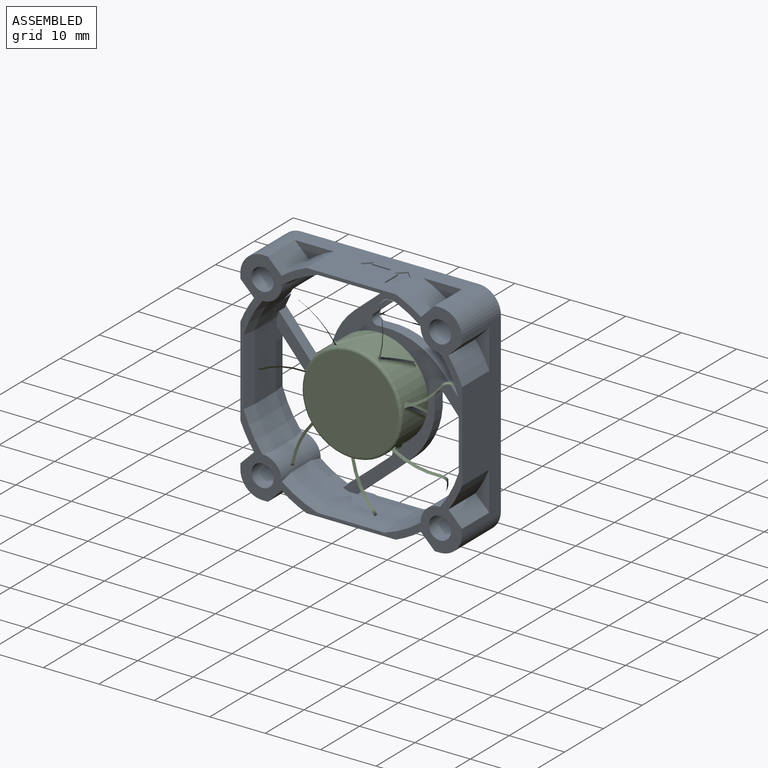
[diagram: assembled view]
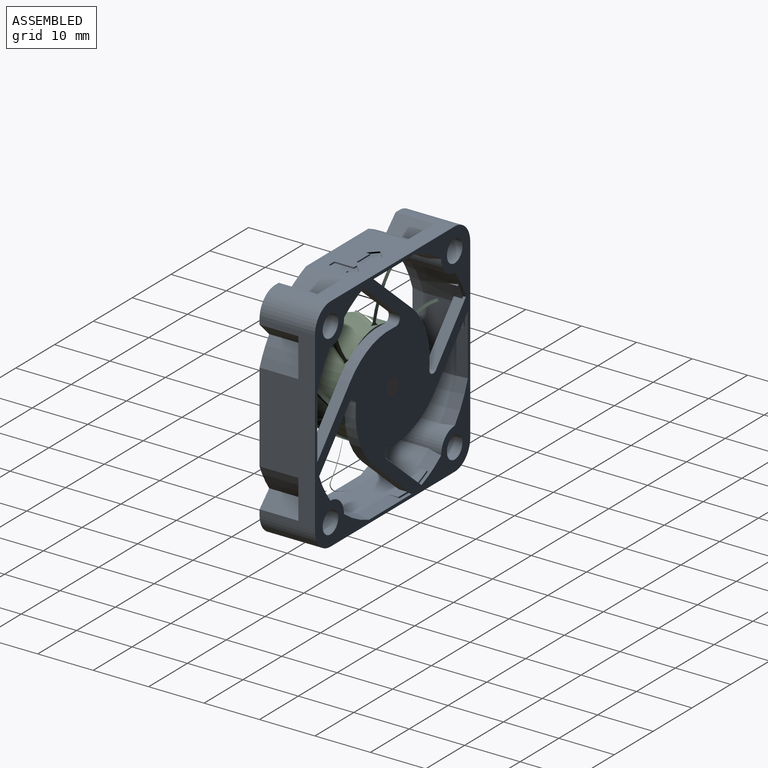
[diagram: assembled view, second angle]
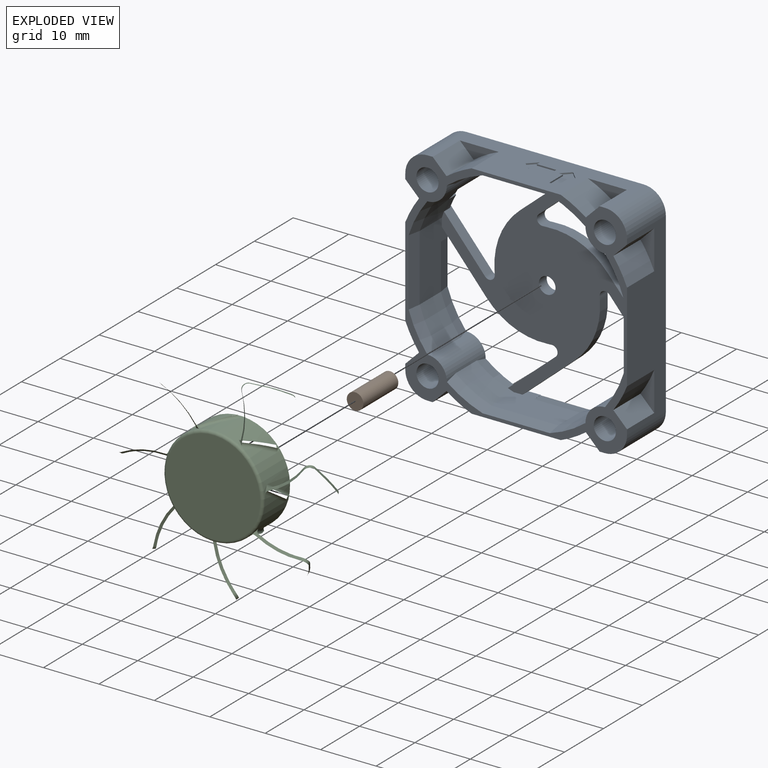
[diagram: exploded view]
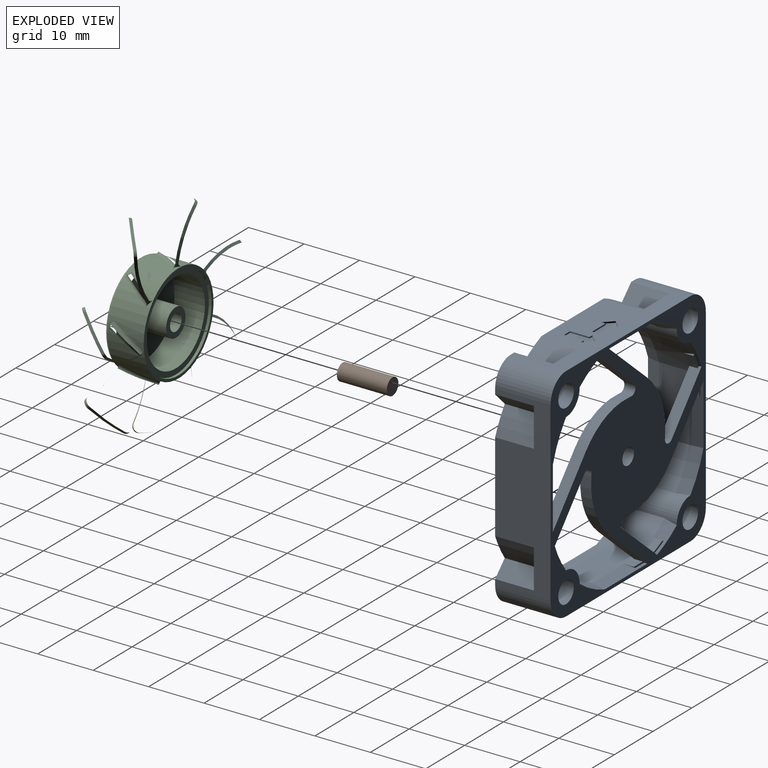
[diagram: exploded view, second angle]
ASSEMBLY  parts=3 mates=2
PART A: 132 faces, bbox 40x10x40 mm
  f0: plane 9.86x8.47mm, normal (-0.65,0,0.76), area 25mm2, adj f4,f28,f37,f87,f99,f115
  f1: plane 9.86x8.47mm, normal (0.76,0,0.65), area 25mm2, adj f5,f16,f37,f87,f95,f111
  f2: plane 9.86x8.47mm, normal (0.65,0,-0.76), area 25mm2, adj f6,f20,f37,f87,f91,f107
  f3: plane 9.86x8.47mm, normal (-0.76,0,-0.65), area 25mm2, adj f7,f24,f37,f86,f87,f103
  f4: plane 10.99x2.27mm, normal (0,0.17,-0.98), area 20.6mm2, adj f0,f28,f37,f79,f114,f115
  f5: plane 10.99x2.27mm, normal (-0.98,0.17,0), area 20.6mm2, adj f1,f16,f37,f81,f110,f111
  f6: plane 10.99x2.27mm, normal (0,0.17,0.98), area 20.6mm2, adj f2,f20,f37,f74,f106,f107
  f7: plane 10.99x2.27mm, normal (0.98,0.17,0), area 20.6mm2, adj f3,f24,f37,f76,f102,f103
  f8: plane 40x40mm, normal (0,-1,0), area 219.4mm2, adj f9,f10,f11,f12,f13,f14,f15,f18
  f9: plane 32x10mm, normal (-1,0,0), area 222mm2, adj f8,f14,f15,f37,f41,f42,f43,f59
  f10: plane 32x10mm, normal (0,0,-1), area 222mm2, adj f8,f15,f36,f37,f38,f39,f40,f47
  f11: plane 32x10mm, normal (1,0,0), area 222mm2, adj f8,f12,f36,f37,f44,f45,f46,f53
  f12: cylinder r=4mm len=10mm, axis (0,1,0), area 62.8mm2, adj f8,f11,f13,f37
  f13: plane 32x10mm, normal (0,0,1), area 207mm2, adj f8,f12,f14,f37,f50,f51,f52,f56
  f14: cylinder r=4mm len=10mm, axis (0,1,0), area 62.8mm2, adj f8,f9,f13,f37
  f15: cylinder r=4mm len=10mm, axis (0,1,0), area 62.8mm2, adj f8,f9,f10,f37
  f16: plane 12x7.23mm, normal (-1,0,0), area 70mm2, adj f1,f5,f17,f35,f64,f87,f110,f111
  f17: cylinder r=19.92mm len=7.23mm, axis (0,1,0), area 45.8mm2, adj f16,f18,f62,f80,f87,f92,f108,f109
  f18: cylinder r=3.5mm len=10mm, axis (0,1,0), area 47.2mm2, adj f8,f17,f19,f37,f62,f71,f74,f80
  f19: cylinder r=19.92mm len=6.54mm, axis (0,1,0), area 40.8mm2, adj f18,f20,f71,f74
  f20: plane 12x7.23mm, normal (0,0,1), area 70mm2, adj f2,f6,f19,f21,f73,f87,f106,f107
  f21: cylinder r=19.92mm len=7.23mm, axis (0,1,0), area 45.8mm2, adj f20,f22,f72,f75,f87,f88,f104,f105
  f22: cylinder r=3.5mm len=10mm, axis (0,1,0), area 47.2mm2, adj f8,f21,f23,f37,f68,f72,f75,f76
  f23: cylinder r=19.92mm len=6.54mm, axis (0,1,0), area 40.8mm2, adj f22,f24,f68,f76
  f24: plane 12x7.23mm, normal (1,0,0), area 70mm2, adj f3,f7,f23,f25,f70,f87,f102,f103
  f25: cylinder r=19.92mm len=7.23mm, axis (0,1,0), area 45.8mm2, adj f24,f26,f69,f77,f82,f87,f100,f101
  f26: cylinder r=3.5mm len=10mm, axis (0,1,0), area 47.2mm2, adj f8,f25,f27,f37,f66,f69,f77,f79
  f27: cylinder r=19.92mm len=6.54mm, axis (0,1,0), area 40.8mm2, adj f26,f28,f66,f79
  f28: plane 12x7.23mm, normal (0,0,-1), area 70mm2, adj f0,f4,f27,f29,f67,f87,f114,f115
  f29: cylinder r=19.92mm len=7.23mm, axis (0,1,0), area 45.8mm2, adj f28,f30,f65,f78,f87,f96,f112,f113
  f30: cylinder r=3.5mm len=10mm, axis (0,1,0), area 47.2mm2, adj f8,f29,f35,f37,f63,f65,f78,f81
  f31: cylinder r=2mm len=10mm, axis (0,1,0), area 125.7mm2, adj f8,f37
  f32: cylinder r=2mm len=10mm, axis (0,1,0), area 125.7mm2, adj f8,f37
  f33: cylinder r=2mm len=10mm, axis (0,1,0), area 125.7mm2, adj f8,f37
  f34: cylinder r=2mm len=10mm, axis (0,1,0), area 125.7mm2, adj f8,f37
  f35: cylinder r=19.92mm len=6.54mm, axis (0,1,0), area 40.8mm2, adj f16,f30,f63,f81
  f36: cylinder r=4mm len=10mm, axis (0,1,0), area 62.8mm2, adj f8,f10,f11,f37
  f37: plane 40x40mm, normal (0,1,0), area 730mm2, adj f0,f1,f2,f3,f4,f5,f6,f7
  f38: plane 7x2.48mm, normal (0.71,0,-0.71), area 24.6mm2, adj f8,f10,f39,f40
  f39: cylinder r=21.56mm len=7mm, axis (0,-1,0), area 36.2mm2, adj f8,f10,f38,f40
  f40: plane 7x2.48mm, normal (0,-1,0), area 8.2mm2, adj f10,f38,f39
  f41: plane 7x2.48mm, normal (-0.71,0,0.71), area 24.6mm2, adj f8,f9,f42,f43
  f42: cylinder r=21.56mm len=7mm, axis (0,-1,0), area 36.2mm2, adj f8,f9,f41,f43
  f43: plane 7x2.48mm, normal (0,-1,0), area 8.2mm2, adj f9,f41,f42
  f44: plane 7x2.48mm, normal (0.71,0,0.71), area 24.6mm2, adj f8,f11,f45,f46
  f45: cylinder r=21.56mm len=7mm, axis (0,-1,0), area 36.2mm2, adj f8,f11,f44,f46
  f46: plane 7x2.48mm, normal (0,-1,0), area 8.2mm2, adj f11,f44,f45
  f47: plane 7x2.48mm, normal (-0.71,0,-0.71), area 24.6mm2, adj f8,f10,f48,f49
  f48: cylinder r=21.56mm len=7mm, axis (0,-1,0), area 36.2mm2, adj f8,f10,f47,f49
  f49: plane 7x2.48mm, normal (0,-1,0), area 8.2mm2, adj f10,f47,f48
  f50: plane 7x2.48mm, normal (-0.71,0,0.71), area 24.6mm2, adj f8,f13,f51,f52
  f51: cylinder r=21.56mm len=7mm, axis (0,-1,0), area 36.2mm2, adj f8,f13,f50,f52
  f52: plane 7x2.48mm, normal (0,-1,0), area 8.2mm2, adj f13,f50,f51
  f53: plane 7x2.48mm, normal (0.71,0,-0.71), area 24.6mm2, adj f8,f11,f54,f55
  f54: cylinder r=21.56mm len=7mm, axis (0,-1,0), area 36.2mm2, adj f8,f11,f53,f55
  f55: plane 7x2.48mm, normal (0,-1,0), area 8.2mm2, adj f11,f53,f54
  f56: plane 7x2.48mm, normal (0.71,0,0.71), area 24.6mm2, adj f8,f13,f57,f58
  f57: cylinder r=21.56mm len=7mm, axis (0,-1,0), area 36.2mm2, adj f8,f13,f56,f58
  f58: plane 7x2.48mm, normal (0,-1,0), area 8.2mm2, adj f13,f56,f57
  f59: plane 7x2.48mm, normal (-0.71,0,-0.71), area 24.6mm2, adj f8,f9,f60,f61
  f60: cylinder r=21.56mm len=7mm, axis (0,-1,0), area 36.2mm2, adj f8,f9,f59,f61
  f61: plane 7x2.48mm, normal (0,-1,0), area 8.2mm2, adj f9,f59,f60
  f62: cone r=20.32mm half-angle=10deg, axis (0,-1,0), area 17mm2, adj f8,f17,f18,f64
  f63: cone r=20.32mm half-angle=10deg, axis (0,-1,0), area 17mm2, adj f8,f30,f35,f64
  f64: plane 12.12x2.27mm, normal (-0.98,-0.17,0), area 27.8mm2, adj f8,f16,f62,f63
  f65: cone r=20.32mm half-angle=10deg, axis (0,-1,0), area 17mm2, adj f8,f29,f30,f67
  f66: cone r=20.32mm half-angle=10deg, axis (0,-1,0), area 17mm2, adj f8,f26,f27,f67
  f67: plane 12.12x2.27mm, normal (0,-0.17,-0.98), area 27.8mm2, adj f8,f28,f65,f66
  f68: cone r=20.32mm half-angle=10deg, axis (0,-1,0), area 17mm2, adj f8,f22,f23,f70
  f69: cone r=20.32mm half-angle=10deg, axis (0,-1,0), area 17mm2, adj f8,f25,f26,f70
  f70: plane 12.12x2.27mm, normal (0.98,-0.17,0), area 27.8mm2, adj f8,f24,f68,f69
  f71: cone r=20.32mm half-angle=10deg, axis (0,-1,0), area 17mm2, adj f8,f18,f19,f73
  f72: cone r=20.32mm half-angle=10deg, axis (0,-1,0), area 17mm2, adj f8,f21,f22,f73
  f73: plane 12.12x2.27mm, normal (0,-0.17,0.98), area 27.8mm2, adj f8,f20,f71,f72
  f74: cone r=19.92mm half-angle=10deg, axis (0,1,0), area 17mm2, adj f6,f18,f19,f37
  f75: cone r=19.92mm half-angle=10deg, axis (0,1,0), area 9.2mm2, adj f21,f22,f37,f88,f104,f105
  f76: cone r=19.92mm half-angle=10deg, axis (0,1,0), area 17mm2, adj f7,f22,f23,f37
  f77: cone r=19.92mm half-angle=10deg, axis (0,1,0), area 9.2mm2, adj f25,f26,f37,f82,f100,f101
  f78: cone r=19.92mm half-angle=10deg, axis (0,1,0), area 9.2mm2, adj f29,f30,f37,f96,f112,f113
  f79: cone r=19.92mm half-angle=10deg, axis (0,1,0), area 17mm2, adj f4,f26,f27,f37
  f80: cone r=19.92mm half-angle=10deg, axis (0,1,0), area 9.2mm2, adj f17,f18,f37,f92,f108,f109
  f81: cone r=19.92mm half-angle=10deg, axis (0,1,0), area 17mm2, adj f5,f30,f35,f37
  f82: plane 8.95x7.69mm, normal (0.76,0,0.65), area 22.9mm2, adj f25,f37,f77,f83,f87,f100
  f83: cylinder r=1mm len=2mm, axis (0,1,0), area 5mm2, adj f37,f82,f84,f87
  f84: cylinder r=9.5mm len=2mm, axis (0,1,0), area 1.6mm2, adj f37,f83,f87,f99
  f85: cylinder r=1.5mm len=3mm, axis (0,1,0), area 18.8mm2, adj f37,f87
  f86: cylinder r=13.22mm len=10.93mm, axis (0,1,0), area 24.6mm2, adj f3,f37,f87,f90
  f87: plane 38x38mm, normal (0,-1,0), area 441.1mm2, adj f0,f1,f2,f3,f16,f17,f20,f21
  f88: plane 8.95x7.69mm, normal (-0.65,0,0.76), area 22.9mm2, adj f21,f37,f75,f87,f89,f104
  f89: cylinder r=1mm len=2mm, axis (0,1,0), area 5mm2, adj f37,f87,f88,f90
  f90: cylinder r=9.5mm len=2mm, axis (0,1,0), area 1.6mm2, adj f37,f86,f87,f89
  f91: cylinder r=13.22mm len=10.93mm, axis (0,1,0), area 24.6mm2, adj f2,f37,f87,f94
  f92: plane 8.95x7.69mm, normal (-0.76,0,-0.65), area 22.9mm2, adj f17,f37,f80,f87,f93,f108
  f93: cylinder r=1mm len=2mm, axis (0,1,0), area 5mm2, adj f37,f87,f92,f94
  f94: cylinder r=9.5mm len=2mm, axis (0,1,0), area 1.6mm2, adj f37,f87,f91,f93
  f95: cylinder r=13.22mm len=10.93mm, axis (0,1,0), area 24.6mm2, adj f1,f37,f87,f98
  f96: plane 8.95x7.69mm, normal (0.65,0,-0.76), area 22.9mm2, adj f29,f37,f78,f87,f97,f112
  f97: cylinder r=1mm len=2mm, axis (0,1,0), area 5mm2, adj f37,f87,f96,f98
  f98: cylinder r=9.5mm len=2mm, axis (0,1,0), area 1.6mm2, adj f37,f87,f95,f97
  f99: cylinder r=13.22mm len=10.93mm, axis (0,1,0), area 24.6mm2, adj f0,f37,f84,f87
  f100: plane 2.69x1.35mm, normal (0,1,0), area 0.8mm2, adj f25,f77,f82,f101
  f101: plane 1.77x0.25mm, normal (0.76,0,0.65), area 0.3mm2, adj f25,f77,f100
  f102: plane 1.77x0.36mm, normal (-0.76,0,-0.65), area 0.4mm2, adj f7,f24,f103
  f103: plane 2.66x0.31mm, normal (0,1,0), area 0.7mm2, adj f3,f7,f24,f102
  f104: plane 2.69x1.35mm, normal (0,1,0), area 0.8mm2, adj f21,f75,f88,f105
  f105: plane 1.77x0.25mm, normal (-0.65,0,0.76), area 0.3mm2, adj f21,f75,f104
  f106: plane 1.77x0.36mm, normal (0.65,0,-0.76), area 0.4mm2, adj f6,f20,f107
  f107: plane 2.66x0.31mm, normal (0,1,0), area 0.7mm2, adj f2,f6,f20,f106
  f108: plane 2.69x1.35mm, normal (0,1,0), area 0.8mm2, adj f17,f80,f92,f109
  f109: plane 1.77x0.25mm, normal (-0.76,0,-0.65), area 0.3mm2, adj f17,f80,f108
  f110: plane 1.77x0.36mm, normal (0.76,0,0.65), area 0.4mm2, adj f5,f16,f111
  f111: plane 2.66x0.31mm, normal (0,1,0), area 0.7mm2, adj f1,f5,f16,f110
  f112: plane 2.69x1.35mm, normal (0,1,0), area 0.8mm2, adj f29,f78,f96,f113
  f113: plane 1.77x0.25mm, normal (0.65,0,-0.76), area 0.3mm2, adj f29,f78,f112
  f114: plane 1.77x0.36mm, normal (-0.65,0,0.76), area 0.4mm2, adj f4,f28,f115
  f115: plane 2.66x0.31mm, normal (0,1,0), area 0.7mm2, adj f0,f4,f28,f114
  f116: plane 3.5x0.25mm, normal (0,1,0), area 0.9mm2, adj f13,f117,f122,f123
  f117: plane 1.5x0.25mm, normal (-1,0,0), area 0.4mm2, adj f13,f116,f118,f123
  f118: plane 3.5x0.25mm, normal (0,-1,0), area 0.9mm2, adj f13,f117,f119,f123
  f119: plane 0.75x0.25mm, normal (-1,0,0), area 0.2mm2, adj f13,f118,f120,f123
  f120: plane 1.5x1.5mm, normal (0.71,-0.71,0), area 0.5mm2, adj f13,f119,f121,f123
  f121: plane 1.5x1.5mm, normal (0.71,0.71,0), area 0.5mm2, adj f13,f120,f122,f123
  f122: plane 0.75x0.25mm, normal (-1,0,0), area 0.2mm2, adj f13,f116,f121,f123
  f123: plane 5x3mm, normal (0,0,1), area 7.5mm2, adj f116,f117,f118,f119,f120,f121,f122
  f124: plane 1.5x1.5mm, normal (-0.71,-0.71,0), area 0.5mm2, adj f13,f125,f130,f131
  f125: plane 1.5x1.5mm, normal (0.71,-0.71,0), area 0.5mm2, adj f13,f124,f126,f131
  f126: plane 0.75x0.25mm, normal (0,1,0), area 0.2mm2, adj f13,f125,f127,f131
  f127: plane 3.5x0.25mm, normal (1,0,0), area 0.9mm2, adj f13,f126,f128,f131
  f128: plane 1.5x0.25mm, normal (0,1,0), area 0.4mm2, adj f13,f127,f129,f131
  f129: plane 3.5x0.25mm, normal (-1,0,0), area 0.9mm2, adj f13,f128,f130,f131
  f130: plane 0.75x0.25mm, normal (0,1,0), area 0.2mm2, adj f13,f124,f129,f131
  f131: plane 5x3mm, normal (0,0,1), area 7.5mm2, adj f124,f125,f126,f127,f128,f129,f130
PART B: 3 faces, bbox 3x9x3 mm
  f0: cylinder r=1.5mm len=9mm, axis (0,1,0), area 84.8mm2, adj f1,f2
  f1: plane 3x3mm, normal (0,-1,0), area 7.1mm2, adj f0
  f2: plane 3x3mm, normal (0,1,0), area 7.1mm2, adj f0
PART C: 75 faces, bbox 37.1x7.5x36.9 mm
  f0: cylinder r=9mm len=18mm, axis (0,-1,0), area 300.8mm2, adj f11,f16,f17,f18,f19,f23,f24,f25
  f1: bspline ~3.98x1.98mm, area 0mm2, adj f2,f4
  f2: bspline ~3.01x2.73mm, area 0mm2, adj f1,f10
  f3: cylinder r=7.5mm len=15mm, axis (0,-1,0), area 259.2mm2, adj f4,f5
  f4: plane 17x17mm, normal (0,1,0), area 50.2mm2, adj f1,f3,f10,f63,f65,f67,f69,f71
  f5: plane 15x15mm, normal (0,1,0), area 157.1mm2, adj f3,f7
  f6: cylinder r=1.5mm len=5.5mm, axis (0,-1,0), area 51.8mm2, adj f8,f9
  f7: cylinder r=2.5mm len=5.5mm, axis (0,-1,0), area 86.4mm2, adj f5,f8
  f8: plane 5x5mm, normal (0,1,0), area 12.6mm2, adj f6,f7
  f9: plane 3x3mm, normal (0,1,0), area 7.1mm2, adj f6
  f10: cylinder r=8.5mm len=17mm, axis (0,-1,0), area 26.4mm2, adj f2,f4,f11,f62,f64,f66,f68,f70
  f11: plane 18x18mm, normal (0,1,0), area 27.5mm2, adj f0,f10
  f12: plane 17x17mm, normal (0,-1,0), area 227mm2, adj f74
  f13: bspline ~1.62x1.52mm, area 1mm2, adj f14,f17
  f14: bspline ~4.86x4.5mm, area 3.3mm2, adj f13,f15
  f15: bspline ~1.02x0.87mm, area 0.6mm2, adj f14,f16
  f16: bspline ~9.82x5.71mm, area 5mm2, adj f0,f15,f18,f19
  f17: bspline ~10.82x2.61mm, area 4.6mm2, adj f0,f13,f18,f19
  f18: bspline ~6.93x3.8mm, area 5.6mm2, adj f0,f16,f17
  f19: bspline ~6.89x3.67mm, area 4.4mm2, adj f0,f16,f17
  f20: bspline ~5.33x4.5mm, area 3.3mm2, adj f21,f22
  f21: bspline ~0.97x0.95mm, area 0.6mm2, adj f20,f23
  f22: bspline ~1.61x1.57mm, area 1mm2, adj f20,f24
  f23: bspline ~10.54x3.74mm, area 5mm2, adj f0,f21,f25,f26
  f24: bspline ~10.74x2.8mm, area 4.6mm2, adj f0,f22,f25,f26
  f25: bspline ~6.89x3.67mm, area 4.4mm2, adj f0,f23,f24
  f26: bspline ~6.93x4.32mm, area 5.6mm2, adj f0,f23,f24
  f27: bspline ~7.28x5.87mm, area 3.3mm2, adj f28,f29
  f28: bspline ~1.13x0.9mm, area 0.6mm2, adj f27,f30
  f29: bspline ~1.56x1.54mm, area 1mm2, adj f27,f31
  f30: bspline ~10.85x2.24mm, area 5mm2, adj f0,f28,f32,f33
  f31: bspline ~10.13x4.66mm, area 4.6mm2, adj f0,f29,f32,f33
  f32: bspline ~6.89x4.12mm, area 4.4mm2, adj f0,f30,f31
  f33: bspline ~6.93x4.61mm, area 5.6mm2, adj f0,f30,f31
  f34: bspline ~7.16x5.87mm, area 3.3mm2, adj f35,f36
  f35: bspline ~1.23x0.87mm, area 0.6mm2, adj f34,f37
  f36: bspline ~1.67x1.43mm, area 1mm2, adj f34,f38
  f37: bspline ~10.62x3.28mm, area 5mm2, adj f0,f35,f39,f40
  f38: bspline ~9.28x6.65mm, area 4.6mm2, adj f0,f36,f39,f40
  f39: bspline ~6.89x4.48mm, area 4.4mm2, adj f0,f37,f38
  f40: bspline ~6.93x4.68mm, area 5.6mm2, adj f0,f37,f38
  f41: bspline ~4.5x4.14mm, area 3.3mm2, adj f42,f43
  f42: bspline ~1.17x0.87mm, area 0.6mm2, adj f41,f44
  f43: bspline ~1.58x1.48mm, area 1mm2, adj f41,f45
  f44: bspline ~8.71x7.52mm, area 5mm2, adj f0,f42,f46,f47
  f45: bspline ~10.35x4.29mm, area 4.6mm2, adj f0,f43,f46,f47
  f46: bspline ~6.89x4.21mm, area 4.4mm2, adj f0,f44,f45
  f47: bspline ~6.93x3.94mm, area 5.6mm2, adj f0,f44,f45
  f48: bspline ~4.52x4.5mm, area 3.3mm2, adj f49,f50
  f49: bspline ~1.25x0.87mm, area 0.6mm2, adj f48,f51
  f50: bspline ~1.62x1.59mm, area 1mm2, adj f48,f52
  f51: bspline ~8.95x7.17mm, area 5mm2, adj f0,f49,f53,f54
  f52: bspline ~9.55x6.27mm, area 4.6mm2, adj f0,f50,f53,f54
  f53: bspline ~6.89x4.53mm, area 4.4mm2, adj f0,f51,f52
  f54: bspline ~6.93x4.27mm, area 5.6mm2, adj f0,f51,f52
  f55: bspline ~6.69x5.87mm, area 3.3mm2, adj f56,f57
  f56: bspline ~1.27x0.87mm, area 0.6mm2, adj f55,f58
  f57: bspline ~1.69x1.55mm, area 1mm2, adj f55,f59
  f58: bspline ~9.93x5.26mm, area 5mm2, adj f0,f56,f60,f61
  f59: bspline ~8.31x7.98mm, area 4.6mm2, adj f0,f57,f60,f61
  f60: bspline ~6.89x4.62mm, area 4.4mm2, adj f0,f58,f59
  f61: bspline ~6.93x4.54mm, area 5.6mm2, adj f0,f58,f59
  f62: bspline ~3.4x2.11mm, area 0mm2, adj f10,f63
  f63: bspline ~3.98x2.13mm, area 0mm2, adj f4,f62
  f64: bspline ~3.63x1.39mm, area 0mm2, adj f10,f65
  f65: bspline ~0.27x0.26mm, area 0mm2, adj f4,f64
  f66: bspline ~3.7x0.64mm, area 0mm2, adj f10,f67
  f67: bspline ~0.29x0.26mm, area 0mm2, adj f4,f66
  f68: bspline ~3.21x2.46mm, area 0mm2, adj f10,f69
  f69: bspline ~0.26x0.26mm, area 0mm2, adj f4,f68
  f70: bspline ~3.53x1.79mm, area 0mm2, adj f10,f71
  f71: bspline ~0.28x0.26mm, area 0mm2, adj f4,f70
  f72: bspline ~0.29x0.26mm, area 0mm2, adj f4,f73
  f73: bspline ~3.67x1.03mm, area 0mm2, adj f10,f72
  f74: torus R=8.5mm, axis (0,-1,0), area 43.5mm2, adj f0,f12
PLACE A at identity fixed
PLACE B at identity
PLACE C rot(axis=(0,-1,0),160.3deg) t=(0,0,0)mm
MATE fastened B.f0 <-> A.f85  axis (0,1,0) through (0,5,0)mm
MATE revolute C.f6 <-> B.f0  axis (0,1,0) through (0,-4,0)mm
